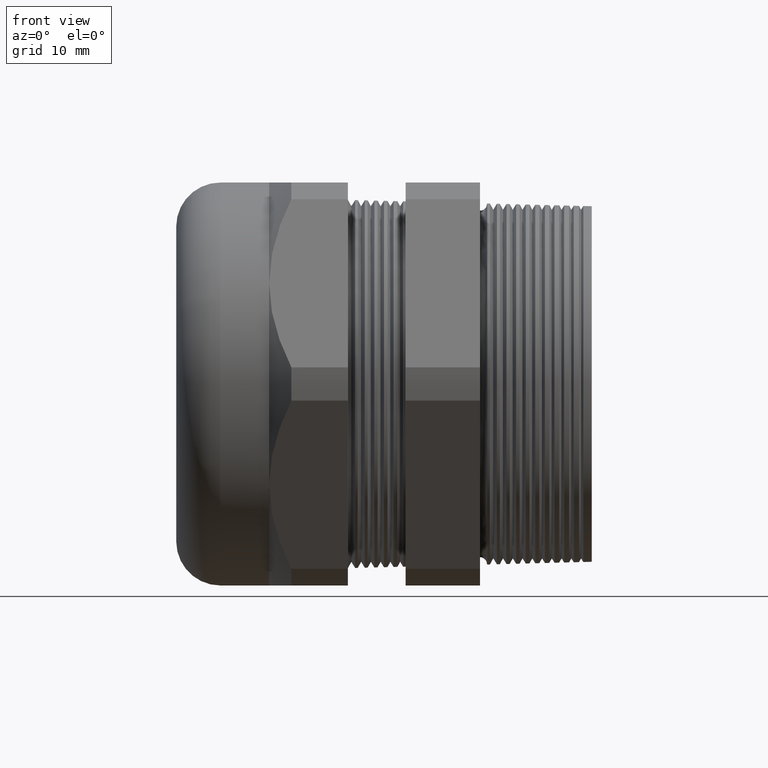
[diagram: clean part render]
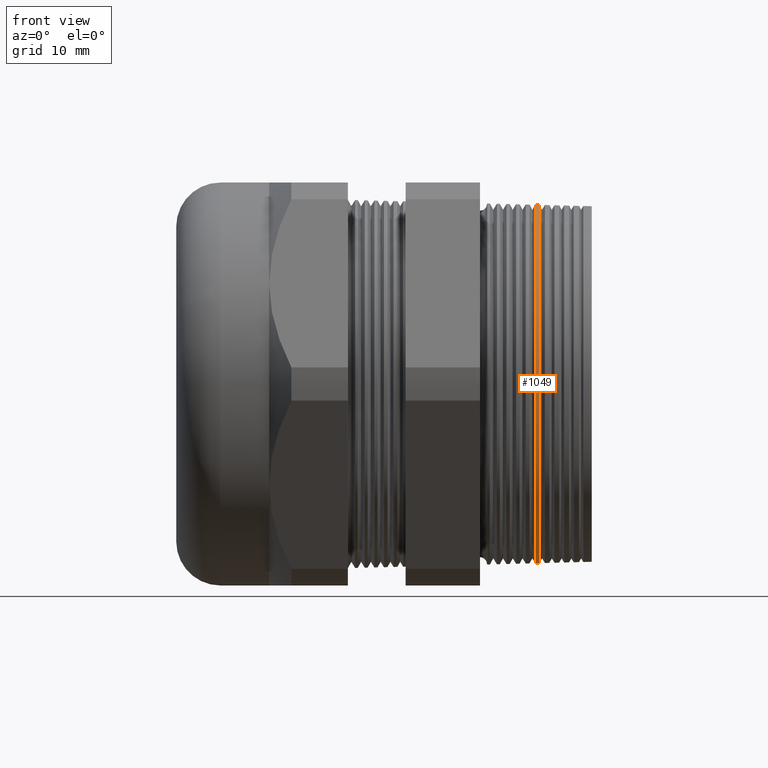
[diagram: same view with one face highlighted and labeled with its STEP entity id]
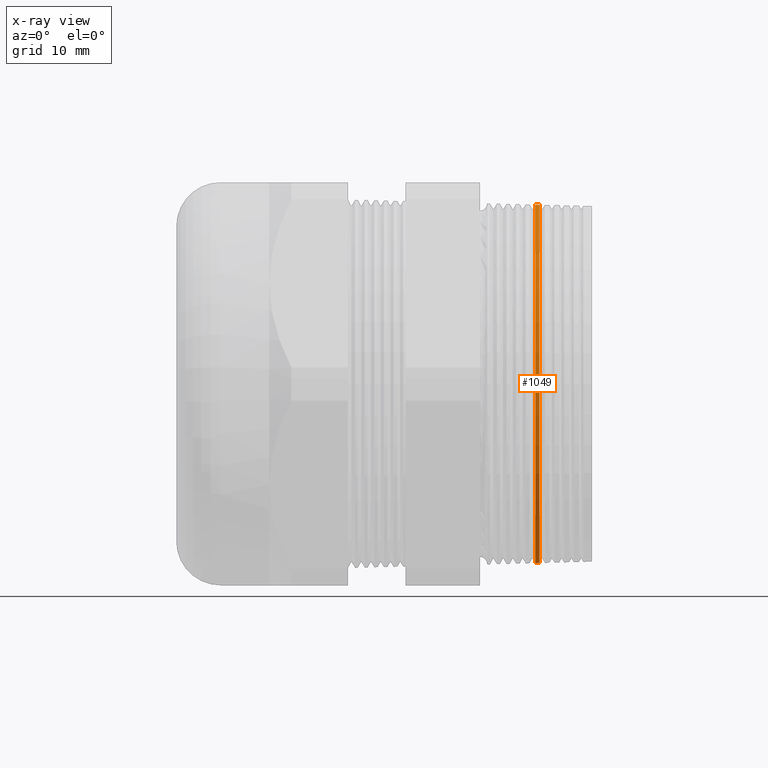
[diagram: x-ray of the same camera — body ghosted, the highlighted face saturated]
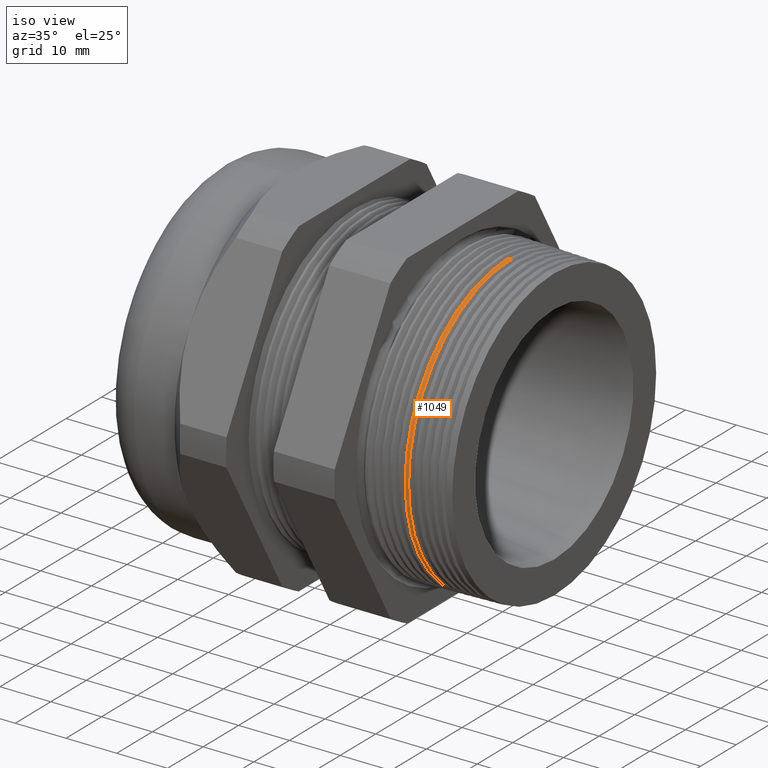
[diagram: same view with one face highlighted and labeled with its STEP entity id]
A machine part, front view. The second image highlights one B-rep face of the part: STEP entity #1049.
The next image is the same camera in x-ray: the body ghosted, the highlighted face saturated — about 0% of this face is hidden behind the body in this view.
A second angle (iso view) of the same face is appended — the face is thin or edge-on in the first view.
In plain terms, the highlighted conical surface has half-angle 1.5 deg.
Its self-contained STEP definition (entity closure, byte-faithful):
#115 = VERTEX_POINT ( 'NONE', #435 ) ;
#116 = VERTEX_POINT ( 'NONE', #434 ) ;
#127 = VERTEX_POINT ( 'NONE', #482 ) ;
#128 = VERTEX_POINT ( 'NONE', #481 ) ;
#434 = CARTESIAN_POINT ( 'NONE',  ( 0.04127626428482016700, 0.0000000000000000000, 1.138819735433075400 ) ) ;
#435 = CARTESIAN_POINT ( 'NONE',  ( 0.04127626428482016700, 1.394651943803951200E-016, -1.138819735433075400 ) ) ;
#481 = CARTESIAN_POINT ( 'NONE',  ( 0.06736530265142896800, 0.0000000000000000000, 1.138136569920591900 ) ) ;
#482 = CARTESIAN_POINT ( 'NONE',  ( 0.06736530265142896800, 1.394233625574876100E-016, -1.138136569920591900 ) ) ;
#1047 = EDGE_CURVE ( 'NONE', #128, #127, #2361, .T. ) ;
#1048 = ORIENTED_EDGE ( 'NONE', *, *, #1047, .F. ) ;
#1049 = ADVANCED_FACE ( 'NONE', ( #2356 ), #2355, .T. ) ;
#1051 = ORIENTED_EDGE ( 'NONE', *, *, #1360, .F. ) ;
#1053 = EDGE_LOOP ( 'NONE', ( #1051, #1048, #1069, #1074 ) ) ;
#1069 = ORIENTED_EDGE ( 'NONE', *, *, #1419, .T. ) ;
#1070 = EDGE_CURVE ( 'NONE', #115, #116, #2435, .T. ) ;
#1074 = ORIENTED_EDGE ( 'NONE', *, *, #1070, .F. ) ;
#1360 = EDGE_CURVE ( 'NONE', #127, #115, #2941, .T. ) ;
#1419 = EDGE_CURVE ( 'NONE', #128, #116, #3029, .T. ) ;
#2349 = DIRECTION ( 'NONE',  ( 0.0000000000000000000, 0.0000000000000000000, 1.000000000000000000 ) ) ;
#2350 = DIRECTION ( 'NONE',  ( -1.000000000000000000, 0.0000000000000000000, 0.0000000000000000000 ) ) ;
#2351 = CARTESIAN_POINT ( 'NONE',  ( 0.3999999999999999700, 0.0000000000000000000, 0.0000000000000000000 ) ) ;
#2352 = AXIS2_PLACEMENT_3D ( 'NONE', #2351, #2350, #2349 ) ;
#2355 = CONICAL_SURFACE ( 'NONE', #2352, 1.129426223824634400, 0.02617993877990812100 ) ;
#2356 = FACE_OUTER_BOUND ( 'NONE', #1053, .T. ) ;
#2357 = DIRECTION ( 'NONE',  ( 0.0000000000000000000, 0.0000000000000000000, 1.000000000000000000 ) ) ;
#2358 = DIRECTION ( 'NONE',  ( 1.000000000000000000, 0.0000000000000000000, 0.0000000000000000000 ) ) ;
#2359 = CARTESIAN_POINT ( 'NONE',  ( 0.06736530265142896800, 0.0000000000000000000, 0.0000000000000000000 ) ) ;
#2360 = AXIS2_PLACEMENT_3D ( 'NONE', #2359, #2358, #2357 ) ;
#2361 = CIRCLE ( 'NONE', #2360, 1.138136569920591900 ) ;
#2377 = CARTESIAN_POINT ( 'NONE',  ( 0.04127626428482016700, 0.0000000000000000000, 0.0000000000000000000 ) ) ;
#2432 = DIRECTION ( 'NONE',  ( 0.0000000000000000000, 0.0000000000000000000, -1.000000000000000000 ) ) ;
#2433 = DIRECTION ( 'NONE',  ( -1.000000000000000000, 0.0000000000000000000, 0.0000000000000000000 ) ) ;
#2434 = AXIS2_PLACEMENT_3D ( 'NONE', #2377, #2433, #2432 ) ;
#2435 = CIRCLE ( 'NONE', #2434, 1.138819735433075400 ) ;
#2933 = DIRECTION ( 'NONE',  ( -0.9996573249755573700, 3.205751595667422300E-018, -0.02617694830786633500 ) ) ;
#2934 = VECTOR ( 'NONE', #2933, 39.37007874015748100 ) ;
#2935 = CARTESIAN_POINT ( 'NONE',  ( 0.3999999999999999700, 1.383148209879920500E-016, -1.129426223824634400 ) ) ;
#2941 = LINE ( 'NONE', #2935, #2934 ) ;
#3021 = DIRECTION ( 'NONE',  ( -0.9996573249755573700, 0.0000000000000000000, 0.02617694830786633500 ) ) ;
#3022 = VECTOR ( 'NONE', #3021, 39.37007874015748100 ) ;
#3023 = CARTESIAN_POINT ( 'NONE',  ( 0.3999999999999999700, 0.0000000000000000000, 1.129426223824634400 ) ) ;
#3029 = LINE ( 'NONE', #3023, #3022 ) ;